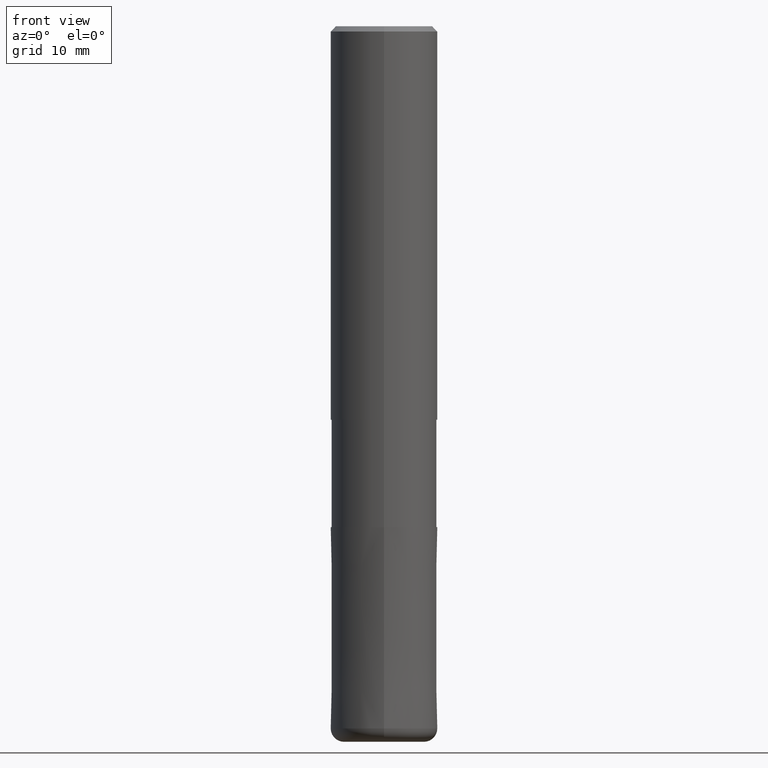
[diagram: clean part render]
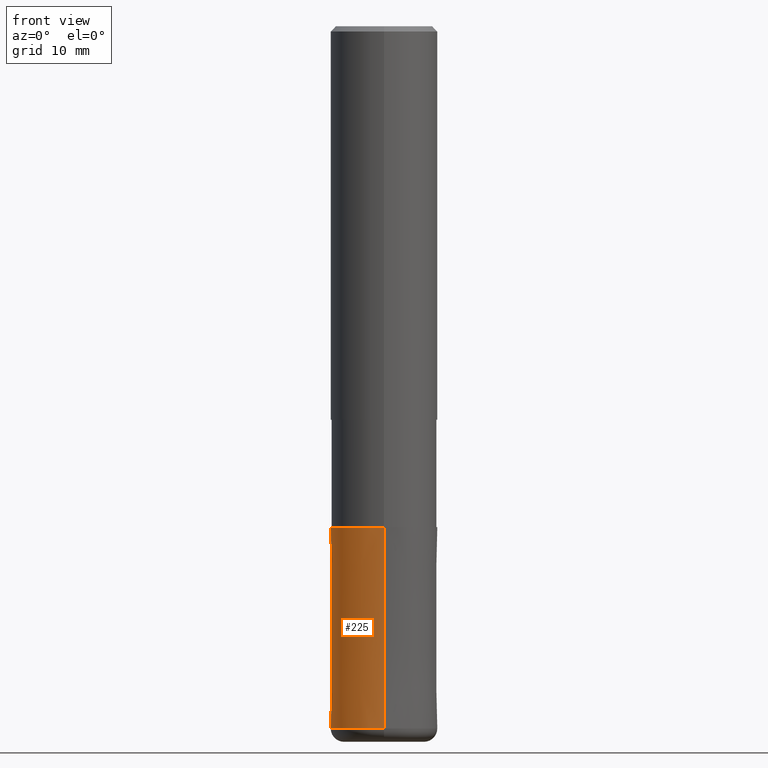
[diagram: same view with one face highlighted and labeled with its STEP entity id]
A machine part, front view. The second image highlights one B-rep face of the part: STEP entity #225.
In plain terms, the highlighted conical surface has half-angle 0 deg.
Its self-contained STEP definition (entity closure, byte-faithful):
#155=EDGE_CURVE('',#187,#189,#346,.T.);
#159=VERTEX_POINT('',#352);
#187=VERTEX_POINT('',#387);
#189=VERTEX_POINT('',#389);
#211=EDGE_CURVE('',#189,#259,#415,.T.);
#221=EDGE_CURVE('',#159,#187,#426,.T.);
#225=ADVANCED_FACE('',(#430),#431,.T.);
#229=EDGE_CURVE('',#159,#259,#435,.T.);
#259=VERTEX_POINT('',#465);
#346=CIRCLE('',#559,5.9999);
#352=CARTESIAN_POINT('',(7.34763812293426E-016,-6.0,-78.5));
#387=CARTESIAN_POINT('',(7.34751566229888E-016,-5.9999,-56.0));
#389=CARTESIAN_POINT('',(0.0,5.9999,-56.0));
#415=LINE('',#642,#643);
#426=LINE('',#657,#658);
#430=FACE_OUTER_BOUND('',#662,.T.);
#431=CONICAL_SURFACE('',#663,5.99995,4.44444444440482E-006);
#435=CIRCLE('',#670,6.0);
#465=CARTESIAN_POINT('',(0.0,6.0,-78.5));
#559=AXIS2_PLACEMENT_3D('',#803,#804,#805);
#642=CARTESIAN_POINT('',(-7.34757689261657E-016,5.99995,-67.25));
#643=VECTOR('',#913,1.0);
#657=CARTESIAN_POINT('',(7.34757689261657E-016,-5.99995,-67.25));
#658=VECTOR('',#928,1.0);
#662=EDGE_LOOP('',(#930,#931,#932,#933));
#663=AXIS2_PLACEMENT_3D('',#934,#935,#936);
#670=AXIS2_PLACEMENT_3D('',#938,#939,#940);
#803=CARTESIAN_POINT('',(0.0,0.0,-56.0));
#804=DIRECTION('',(0.0,0.0,-1.0));
#805=DIRECTION('',(0.0,1.0,0.0));
#913=DIRECTION('',(-5.44269490581079E-022,4.44444444439019E-006,-0.999999999990124));
#928=DIRECTION('',(-5.44269490581079E-022,4.44444444439019E-006,0.999999999990124));
#930=ORIENTED_EDGE('',*,*,#211,.T.);
#931=ORIENTED_EDGE('',*,*,#229,.F.);
#932=ORIENTED_EDGE('',*,*,#221,.T.);
#933=ORIENTED_EDGE('',*,*,#155,.T.);
#934=CARTESIAN_POINT('',(0.0,0.0,-67.25));
#935=DIRECTION('',(0.0,-0.0,-1.0));
#936=DIRECTION('',(0.0,1.0,0.0));
#938=CARTESIAN_POINT('',(0.0,0.0,-78.5));
#939=DIRECTION('',(0.0,0.0,-1.0));
#940=DIRECTION('',(0.0,1.0,0.0));